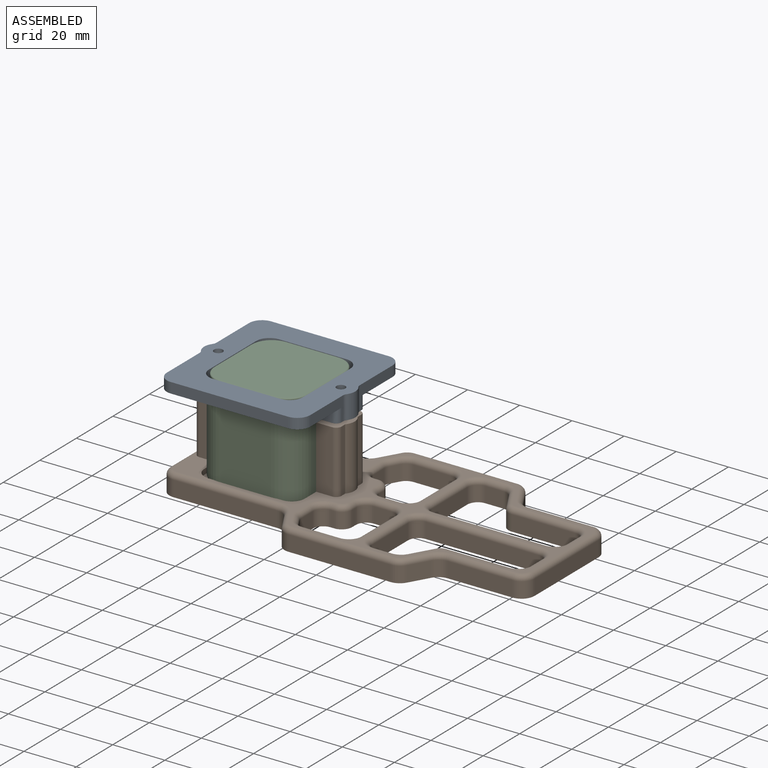
[diagram: assembled view]
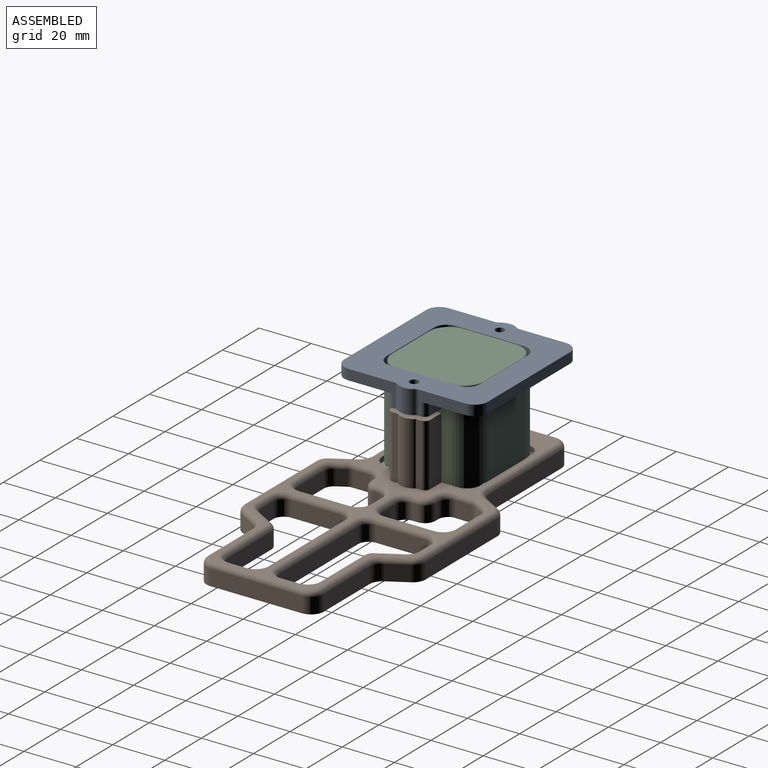
[diagram: assembled view, second angle]
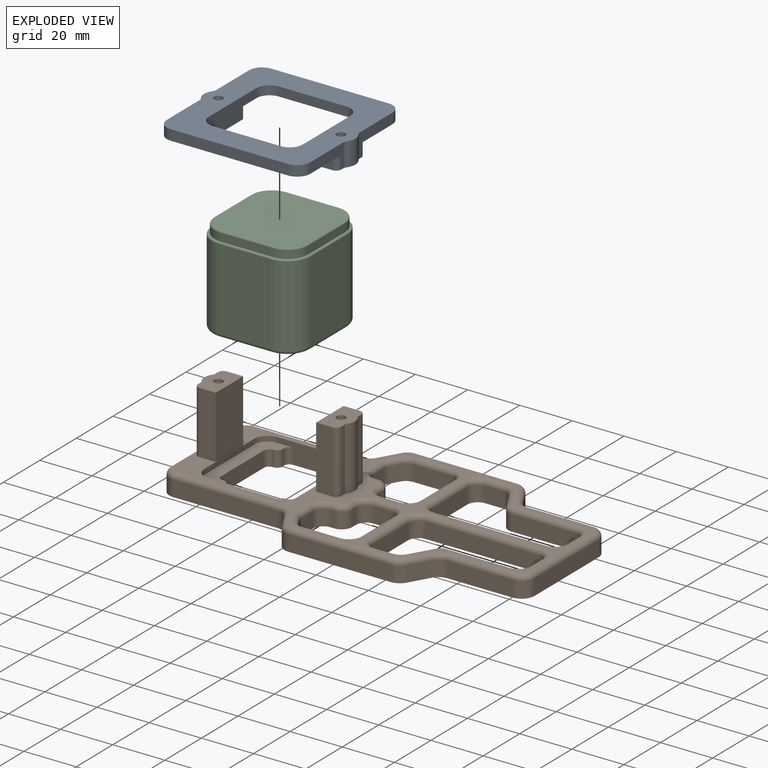
[diagram: exploded view]
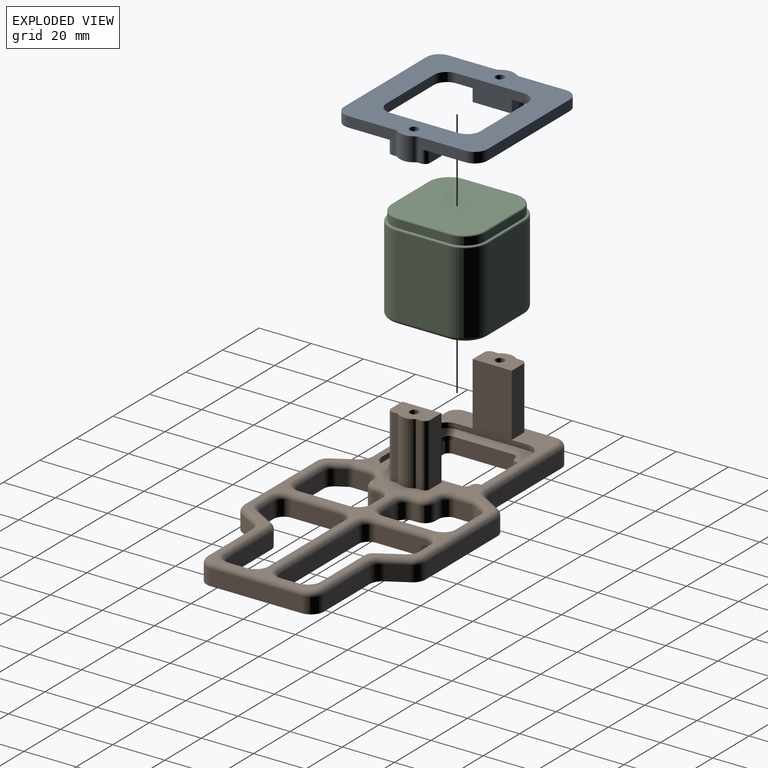
[diagram: exploded view, second angle]
ASSEMBLY  parts=3 mates=2
PART A: 44 faces, bbox 58x55x9 mm
  f0: plane 18x9mm, normal (1,0,0), area 77mm2, adj f1,f12,f19,f33,f37,f39
  f1: plane 55x22mm, normal (0,0,-1), area 638.6mm2, adj f0,f2,f5,f6,f8,f9,f19,f20
  f2: plane 18x9mm, normal (-1,0,0), area 77mm2, adj f1,f12,f20,f24,f27,f30
  f3: plane 45x4mm, normal (0,-1,0), area 180mm2, adj f11,f12,f18,f21
  f4: plane 18x9mm, normal (1,0,0), area 77mm2, adj f11,f12,f18,f33,f36,f38
  f5: plane 45x4mm, normal (0,1,0), area 180mm2, adj f1,f12,f19,f20
  f6: plane 38.5x5.5mm, normal (-1,0,0), area 94.2mm2, adj f1,f7,f9,f11,f17,f31,f32,f33
  f7: plane 38.5x0.5mm, normal (0,1,0), area 19.2mm2, adj f6,f8,f11,f17
  f8: plane 38.5x5.5mm, normal (1,0,0), area 94.2mm2, adj f1,f7,f9,f11,f17,f22,f23,f24
  f9: plane 38.5x0.5mm, normal (0,-1,0), area 19.2mm2, adj f1,f6,f8,f17
  f10: plane 18x9mm, normal (-1,0,0), area 77mm2, adj f11,f12,f21,f24,f28,f29
  f11: plane 55x22mm, normal (0,0,-1), area 638.6mm2, adj f3,f4,f6,f7,f8,f10,f18,f21
  f12: plane 58x55mm, normal (0,0,1), area 1726.6mm2, adj f0,f2,f3,f4,f5,f10,f13,f14
  f13: plane 26x3.5mm, normal (0,-1,0), area 91mm2, adj f12,f17,f40,f43
  f14: plane 26x3.5mm, normal (-1,0,0), area 91mm2, adj f12,f17,f40,f41
  f15: plane 26x3.5mm, normal (0,1,0), area 91mm2, adj f12,f17,f41,f42
  f16: plane 26x3.5mm, normal (1,0,0), area 91mm2, adj f12,f17,f42,f43
  f17: plane 38.5x38.5mm, normal (0,0,-1), area 207.7mm2, adj f6,f7,f8,f9,f13,f14,f15,f16
  f18: cylinder r=5mm len=5mm, axis (0,0,-1), area 31.4mm2, adj f3,f4,f11,f12
  f19: cylinder r=5mm len=5mm, axis (0,0,1), area 31.4mm2, adj f0,f1,f5,f12
  f20: cylinder r=5mm len=5mm, axis (0,0,-1), area 31.4mm2, adj f1,f2,f5,f12
  f21: cylinder r=5mm len=5mm, axis (0,0,1), area 31.4mm2, adj f3,f10,f11,f12
  f22: plane 6.25x5mm, normal (0,1,0), area 31.2mm2, adj f1,f8,f24,f30
  f23: plane 6.25x5mm, normal (0,-1,0), area 31.2mm2, adj f8,f11,f24,f29
  f24: plane 15x9.75mm, normal (0,0,-1), area 120.8mm2, adj f2,f8,f10,f22,f23,f25,f26,f27
  f25: cylinder r=1.7mm len=9mm, axis (0,0,-1), area 96.1mm2, adj f12,f24
  f26: cylinder r=5.5mm len=9mm, axis (0,0,-1), area 63.7mm2, adj f12,f24,f27,f28
  f27: cylinder r=2mm len=9mm, axis (0,0,-1), area 11.6mm2, adj f2,f12,f24,f26
  f28: cylinder r=2mm len=9mm, axis (0,0,-1), area 11.6mm2, adj f10,f12,f24,f26
  f29: cylinder r=2mm len=5mm, axis (0,0,1), area 15.7mm2, adj f10,f11,f23,f24
  f30: cylinder r=2mm len=5mm, axis (0,0,-1), area 15.7mm2, adj f1,f2,f22,f24
  f31: plane 6.25x5mm, normal (0,1,0), area 31.2mm2, adj f1,f6,f33,f39
  f32: plane 6.25x5mm, normal (0,-1,0), area 31.2mm2, adj f6,f11,f33,f38
  f33: plane 15x9.75mm, normal (0,0,-1), area 120.8mm2, adj f0,f4,f6,f31,f32,f34,f35,f36
  f34: cylinder r=1.7mm len=9mm, axis (0,0,-1), area 96.1mm2, adj f12,f33
  f35: cylinder r=5.5mm len=9mm, axis (0,0,-1), area 63.7mm2, adj f12,f33,f36,f37
  f36: cylinder r=2mm len=9mm, axis (0,0,-1), area 11.6mm2, adj f4,f12,f33,f35
  f37: cylinder r=2mm len=9mm, axis (0,0,-1), area 11.6mm2, adj f0,f12,f33,f35
  f38: cylinder r=2mm len=5mm, axis (0,0,1), area 15.7mm2, adj f4,f11,f32,f33
  f39: cylinder r=2mm len=5mm, axis (0,0,-1), area 15.7mm2, adj f0,f1,f31,f33
  f40: cylinder r=5mm len=5mm, axis (0,0,1), area 27.5mm2, adj f12,f13,f14,f17
  f41: cylinder r=5mm len=5mm, axis (0,0,-1), area 27.5mm2, adj f12,f14,f15,f17
  f42: cylinder r=5mm len=5mm, axis (0,0,1), area 27.5mm2, adj f12,f15,f16,f17
  f43: cylinder r=5mm len=5mm, axis (0,0,-1), area 27.5mm2, adj f12,f13,f16,f17
PART B: 214 faces, bbox 140.8x70.8x32 mm
  f0: plane 14.55x6mm, normal (0,-1,0), area 87.3mm2, adj f6,f114,f130,f166
  f1: plane 7x6mm, normal (0,1,0), area 42mm2, adj f6,f128,f134,f165
  f2: plane 14.55x6mm, normal (0,1,0), area 87.3mm2, adj f6,f107,f124,f183
  f3: plane 7x6mm, normal (0,-1,0), area 42mm2, adj f6,f126,f132,f176
  f4: plane 6x2mm, normal (1,0,0), area 12mm2, adj f6,f104,f132,f180
  f5: plane 7x6mm, normal (-1,0,0), area 42mm2, adj f6,f110,f133,f210
  f6: plane 140x70mm, normal (0,0,-1), area 3500.7mm2, adj f0,f1,f2,f3,f4,f5,f9,f10
  f7: plane 136x66mm, normal (0,0,1), area 1105.6mm2, adj f13,f16,f42,f43,f44,f45,f46,f47
  f8: plane 37.5x11.25mm, normal (0,0,1), area 221mm2, adj f9,f10,f42,f44,f45,f48,f49,f72
  f9: plane 6x0.25mm, normal (0,-1,0), area 1.5mm2, adj f6,f8,f75,f82
  f10: plane 6x0.25mm, normal (0,1,0), area 1.5mm2, adj f6,f8,f76,f84
  f11: plane 37.5x11.25mm, normal (0,0,1), area 221mm2, adj f42,f43,f44,f46,f47,f70,f71,f73
  f12: cylinder r=2.1mm len=4.46mm, axis (0,0,-1), area 58.8mm2, adj f66,f68
  f13: plane 24x2.1mm, normal (-1,0,0), area 50.4mm2, adj f7,f63,f65,f67
  f14: cylinder r=1.7mm len=3.4mm, axis (0,0,1), area 18.8mm2, adj f63,f66
  f15: cylinder r=2.1mm len=4.46mm, axis (0,0,-1), area 58.8mm2, adj f56,f58
  f16: plane 24x2.1mm, normal (1,0,0), area 50.4mm2, adj f7,f53,f55,f57
  f17: cylinder r=1.7mm len=3.4mm, axis (0,0,1), area 18.8mm2, adj f53,f56
  f18: plane 39.9x6mm, normal (0,1,0), area 239.4mm2, adj f6,f30,f41,f142
  f19: plane 35x6.15mm, normal (-1,0,0), area 210.4mm2, adj f6,f30,f31,f146,f148,f150
  f20: plane 39.9x6mm, normal (0,-1,0), area 239.4mm2, adj f6,f31,f32,f154
  f21: plane 7.5x6mm, normal (-0.87,-0.5,0), area 52mm2, adj f6,f32,f33,f158
  f22: plane 39.23x6mm, normal (0,-1,0), area 235.4mm2, adj f6,f33,f34,f161
  f23: plane 7.5x6mm, normal (0.87,-0.5,0), area 52mm2, adj f6,f34,f35,f157
  f24: plane 24.9x6mm, normal (0,-1,0), area 149.4mm2, adj f6,f35,f36,f153
  f25: plane 35x6mm, normal (1,0,0), area 210mm2, adj f6,f36,f37,f149
  f26: plane 24.9x6mm, normal (0,1,0), area 149.4mm2, adj f6,f37,f38,f145
  f27: plane 7.5x6mm, normal (0.87,0.5,0), area 52mm2, adj f6,f38,f39,f141
  f28: plane 39.23x6mm, normal (0,1,0), area 235.4mm2, adj f6,f39,f40,f137
  f29: plane 7.5x6mm, normal (-0.87,0.5,0), area 52mm2, adj f6,f40,f41,f138
  f30: cylinder r=5mm len=6mm, axis (0,0,1), area 47.1mm2, adj f6,f18,f19,f144
  f31: cylinder r=5mm len=6mm, axis (0,0,-1), area 47.1mm2, adj f6,f19,f20,f152
  f32: cylinder r=5mm len=6mm, axis (0,0,1), area 31.4mm2, adj f6,f20,f21,f156
  f33: cylinder r=5mm len=6mm, axis (0,0,1), area 31.4mm2, adj f6,f21,f22,f160
  f34: cylinder r=5mm len=6mm, axis (0,0,1), area 31.4mm2, adj f6,f22,f23,f159
  f35: cylinder r=5mm len=6mm, axis (0,0,1), area 31.4mm2, adj f6,f23,f24,f155
  f36: cylinder r=5mm len=6mm, axis (0,0,1), area 47.1mm2, adj f6,f24,f25,f151
  f37: cylinder r=5mm len=6mm, axis (0,0,-1), area 47.1mm2, adj f6,f25,f26,f147
  f38: cylinder r=5mm len=6mm, axis (0,0,1), area 31.4mm2, adj f6,f26,f27,f143
  f39: cylinder r=5mm len=6mm, axis (0,0,1), area 31.4mm2, adj f6,f27,f28,f139
  f40: cylinder r=5mm len=6mm, axis (0,0,1), area 31.4mm2, adj f6,f28,f29,f136
  f41: cylinder r=5mm len=6mm, axis (0,0,1), area 31.4mm2, adj f6,f18,f29,f140
  f42: plane 28.5x8mm, normal (0,1,0), area 153mm2, adj f6,f7,f8,f11,f46,f49,f86,f87
  f43: plane 27.5x26mm, normal (-1,0,0), area 415mm2, adj f7,f11,f46,f47,f50,f52,f53
  f44: plane 28.5x8mm, normal (0,-1,0), area 153mm2, adj f6,f7,f8,f11,f47,f48,f88,f89
  f45: plane 27.5x26mm, normal (1,0,0), area 415mm2, adj f7,f8,f48,f49,f60,f62,f63
  f46: cylinder r=5mm len=5mm, axis (0,0,1), area 15.7mm2, adj f7,f11,f42,f43
  f47: cylinder r=5mm len=5mm, axis (0,0,-1), area 15.7mm2, adj f7,f11,f43,f44
  f48: cylinder r=5mm len=5mm, axis (0,0,1), area 15.7mm2, adj f7,f8,f44,f45
  f49: cylinder r=5mm len=5mm, axis (0,0,-1), area 15.7mm2, adj f7,f8,f42,f45
  f50: plane 24x6.25mm, normal (0,-1,0), area 150mm2, adj f7,f43,f53,f54
  f51: plane 24x2.1mm, normal (1,0,0), area 50.4mm2, adj f7,f53,f54,f57
  f52: plane 24x6.25mm, normal (0,1,0), area 150mm2, adj f7,f43,f53,f55
  f53: plane 15x9.5mm, normal (0,0,1), area 118.8mm2, adj f16,f17,f43,f50,f51,f52,f54,f55
  f54: cylinder r=2mm len=24mm, axis (0,0,-1), area 75.4mm2, adj f7,f50,f51,f53
  f55: cylinder r=2mm len=24mm, axis (0,0,1), area 75.4mm2, adj f7,f16,f52,f53
  f56: cone r=0mm half-angle=59deg, axis (0,0,-1), area 5.6mm2, adj f15,f17
  f57: cylinder r=5.25mm len=24mm, axis (0,0,1), area 177.5mm2, adj f7,f16,f51,f53
  f58: cone r=0mm half-angle=59deg, axis (0,0,-1), area 16.8mm2, adj f15,f59
  f59: cylinder r=3mm len=25mm, axis (0,0,-1), area 471.2mm2, adj f6,f58
  f60: plane 24x6.25mm, normal (0,1,0), area 150mm2, adj f7,f45,f63,f65
  f61: plane 24x2.1mm, normal (-1,0,0), area 50.4mm2, adj f7,f63,f64,f67
  f62: plane 24x6.25mm, normal (0,-1,0), area 150mm2, adj f7,f45,f63,f64
  f63: plane 15x9.5mm, normal (0,0,1), area 118.8mm2, adj f13,f14,f45,f60,f61,f62,f64,f65
  f64: cylinder r=2mm len=24mm, axis (0,0,-1), area 75.4mm2, adj f7,f61,f62,f63
  f65: cylinder r=2mm len=24mm, axis (0,0,1), area 75.4mm2, adj f7,f13,f60,f63
  f66: cone r=0mm half-angle=59deg, axis (0,0,-1), area 5.6mm2, adj f12,f14
  f67: cylinder r=5.25mm len=24mm, axis (0,0,1), area 177.5mm2, adj f7,f13,f61,f63,f148
  f68: cone r=0mm half-angle=59deg, axis (0,0,-1), area 16.8mm2, adj f12,f69
  f69: cylinder r=3mm len=25mm, axis (0,0,-1), area 471.2mm2, adj f6,f68
  f70: plane 23.5x6mm, normal (-1,0,0), area 141mm2, adj f6,f11,f74,f77
  f71: plane 6x0.25mm, normal (0,-1,0), area 1.5mm2, adj f6,f11,f74,f83
  f72: plane 23.5x6mm, normal (1,0,0), area 141mm2, adj f6,f8,f75,f76
  f73: plane 6x0.25mm, normal (0,1,0), area 1.5mm2, adj f6,f11,f77,f85
  f74: cylinder r=2mm len=6mm, axis (0,0,1), area 18.8mm2, adj f6,f11,f70,f71
  f75: cylinder r=2mm len=6mm, axis (0,0,-1), area 18.8mm2, adj f6,f8,f9,f72
  f76: cylinder r=2mm len=6mm, axis (0,0,1), area 18.8mm2, adj f6,f8,f10,f72
  f77: cylinder r=2mm len=6mm, axis (0,0,-1), area 18.8mm2, adj f6,f11,f70,f73
  f78: plane 6x1mm, normal (1,0,0), area 6mm2, adj f6,f8,f84,f86
  f79: plane 6x1mm, normal (-1,0,0), area 6mm2, adj f6,f11,f85,f87
  f80: plane 6x1mm, normal (1,0,0), area 6mm2, adj f6,f8,f82,f89
  f81: plane 6x1mm, normal (-1,0,0), area 6mm2, adj f6,f11,f83,f88
  f82: cylinder r=2mm len=6mm, axis (0,0,1), area 18.8mm2, adj f6,f8,f9,f80
  f83: cylinder r=2mm len=6mm, axis (0,0,-1), area 18.8mm2, adj f6,f11,f71,f81
  f84: cylinder r=2mm len=6mm, axis (0,0,-1), area 18.8mm2, adj f6,f8,f10,f78
  f85: cylinder r=2mm len=6mm, axis (0,0,1), area 18.8mm2, adj f6,f11,f73,f79
  f86: cylinder r=2mm len=6mm, axis (0,0,-1), area 18.8mm2, adj f6,f8,f42,f78
  f87: cylinder r=2mm len=6mm, axis (0,0,1), area 18.8mm2, adj f6,f11,f42,f79
  f88: cylinder r=2mm len=6mm, axis (0,0,-1), area 18.8mm2, adj f6,f11,f44,f81
  f89: cylinder r=2mm len=6mm, axis (0,0,1), area 18.8mm2, adj f6,f8,f44,f80
  f90: plane 6x2mm, normal (1,0,0), area 12mm2, adj f6,f117,f134,f169
  f91: plane 6x1.5mm, normal (0,-1,0), area 9mm2, adj f6,f104,f105,f184
  f92: plane 6.13x6mm, normal (1,0,0), area 36.8mm2, adj f6,f105,f106,f188
  f93: plane 6x3.37mm, normal (0.87,0.5,0), area 23.4mm2, adj f6,f106,f107,f187
  f94: plane 7.05x6mm, normal (0,1,0), area 42.3mm2, adj f6,f108,f125,f205
  f95: plane 8.5x6mm, normal (-0.87,0.5,0), area 58.9mm2, adj f6,f108,f109,f209
  f96: plane 24.36x6mm, normal (0,1,0), area 146.2mm2, adj f6,f109,f110,f213
  f97: plane 7x6mm, normal (-1,0,0), area 42mm2, adj f6,f111,f135,f194
  f98: plane 24.36x6mm, normal (0,-1,0), area 146.2mm2, adj f6,f111,f112,f198
  f99: plane 8.5x6mm, normal (-0.87,-0.5,0), area 58.9mm2, adj f6,f112,f113,f201
  f100: plane 7.05x6mm, normal (0,-1,0), area 42.3mm2, adj f6,f113,f131,f197
  f101: plane 6x3.37mm, normal (0.87,-0.5,0), area 23.4mm2, adj f6,f114,f115,f170
  f102: plane 6.13x6mm, normal (1,0,0), area 36.8mm2, adj f6,f115,f116,f174
  f103: plane 6x1.5mm, normal (0,1,0), area 9mm2, adj f6,f116,f117,f173
  f104: cylinder r=4mm len=6mm, axis (0,0,-1), area 37.7mm2, adj f4,f6,f91,f182
  f105: cylinder r=4mm len=6mm, axis (0,0,-1), area 37.7mm2, adj f6,f91,f92,f186
  f106: cylinder r=4mm len=6mm, axis (0,0,-1), area 12.6mm2, adj f6,f92,f93,f189
  f107: cylinder r=4mm len=6mm, axis (0,0,-1), area 25.1mm2, adj f2,f6,f93,f185
  f108: cylinder r=4mm len=6mm, axis (0,0,-1), area 25.1mm2, adj f6,f94,f95,f207
  f109: cylinder r=4mm len=6mm, axis (0,0,1), area 25.1mm2, adj f6,f95,f96,f211
  f110: cylinder r=4mm len=6mm, axis (0,0,-1), area 37.7mm2, adj f5,f6,f96,f212
  f111: cylinder r=4mm len=6mm, axis (0,0,1), area 37.7mm2, adj f6,f97,f98,f196
  f112: cylinder r=4mm len=6mm, axis (0,0,1), area 25.1mm2, adj f6,f98,f99,f200
  f113: cylinder r=4mm len=6mm, axis (0,0,-1), area 25.1mm2, adj f6,f99,f100,f199
  f114: cylinder r=4mm len=6mm, axis (0,0,-1), area 25.1mm2, adj f0,f6,f101,f168
  f115: cylinder r=4mm len=6mm, axis (0,0,-1), area 12.6mm2, adj f6,f101,f102,f172
  f116: cylinder r=4mm len=6mm, axis (0,0,-1), area 37.7mm2, adj f6,f102,f103,f175
  f117: cylinder r=4mm len=6mm, axis (0,0,1), area 37.7mm2, adj f6,f90,f103,f171
  f118: plane 43.25x6mm, normal (0,-1,0), area 259.5mm2, adj f6,f127,f133,f206
  f119: plane 43.25x6mm, normal (0,1,0), area 259.5mm2, adj f6,f129,f135,f190
  f120: plane 19.5x6mm, normal (-1,0,0), area 117mm2, adj f6,f124,f126,f179
  f121: plane 19.5x6mm, normal (1,0,0), area 117mm2, adj f6,f125,f127,f202
  f122: plane 19.5x6mm, normal (-1,0,0), area 117mm2, adj f6,f128,f130,f162
  f123: plane 19.5x6mm, normal (1,0,0), area 117mm2, adj f6,f129,f131,f193
  f124: cylinder r=4mm len=6mm, axis (0,0,-1), area 37.7mm2, adj f2,f6,f120,f181
  f125: cylinder r=4mm len=6mm, axis (0,0,1), area 37.7mm2, adj f6,f94,f121,f203
  f126: cylinder r=4mm len=6mm, axis (0,0,1), area 37.7mm2, adj f3,f6,f120,f177
  f127: cylinder r=4mm len=6mm, axis (0,0,-1), area 37.7mm2, adj f6,f118,f121,f204
  f128: cylinder r=4mm len=6mm, axis (0,0,-1), area 37.7mm2, adj f1,f6,f122,f163
  f129: cylinder r=4mm len=6mm, axis (0,0,1), area 37.7mm2, adj f6,f119,f123,f191
  f130: cylinder r=4mm len=6mm, axis (0,0,1), area 37.7mm2, adj f0,f6,f122,f164
  f131: cylinder r=4mm len=6mm, axis (0,0,-1), area 37.7mm2, adj f6,f100,f123,f195
  f132: cylinder r=4mm len=6mm, axis (0,0,-1), area 37.7mm2, adj f3,f4,f6,f178
  f133: cylinder r=4mm len=6mm, axis (0,0,1), area 37.7mm2, adj f5,f6,f118,f208
  f134: cylinder r=4mm len=6mm, axis (0,0,1), area 37.7mm2, adj f1,f6,f90,f167
  f135: cylinder r=4mm len=6mm, axis (0,0,-1), area 37.7mm2, adj f6,f97,f119,f192
  f136: torus R=3mm, axis (0,0,1), area 14.1mm2, adj f7,f40,f137,f138
  f137: cylinder r=2mm len=39.23mm, axis (1,0,0), area 123.2mm2, adj f7,f28,f136,f139
  f138: cylinder r=2mm len=8.5mm, axis (0.5,0.87,0), area 27.2mm2, adj f7,f29,f136,f140
  f139: torus R=3mm, axis (0,0,1), area 14.1mm2, adj f7,f39,f137,f141
  f140: torus R=7mm, axis (0,0,1), area 18.8mm2, adj f7,f41,f138,f142
  f141: cylinder r=2mm len=8.5mm, axis (0.5,-0.87,0), area 27.2mm2, adj f7,f27,f139,f143
  f142: cylinder r=2mm len=39.9mm, axis (1,0,0), area 125.3mm2, adj f7,f18,f140,f144
  f143: torus R=7mm, axis (0,0,1), area 18.8mm2, adj f7,f38,f141,f145
  f144: torus R=3mm, axis (0,0,1), area 21.1mm2, adj f7,f30,f142,f146
  f145: cylinder r=2mm len=24.9mm, axis (1,0,0), area 78.2mm2, adj f7,f26,f143,f147
  f146: cylinder r=2mm len=14.8mm, axis (0,1,0), area 46.5mm2, adj f7,f19,f144,f148
  f147: torus R=3mm, axis (0,0,1), area 21.1mm2, adj f7,f37,f145,f149
  f148: bspline ~5.41x2mm, area 14.2mm2, adj f19,f67,f146,f150
  f149: cylinder r=2mm len=35mm, axis (0,-1,0), area 110mm2, adj f7,f25,f147,f151
  f150: cylinder r=2mm len=14.8mm, axis (0,1,0), area 46.5mm2, adj f7,f19,f148,f152
  f151: torus R=3mm, axis (0,0,1), area 21.1mm2, adj f7,f36,f149,f153
  f152: torus R=3mm, axis (0,0,1), area 21.1mm2, adj f7,f31,f150,f154
  f153: cylinder r=2mm len=24.9mm, axis (-1,0,0), area 78.2mm2, adj f7,f24,f151,f155
  f154: cylinder r=2mm len=39.9mm, axis (-1,0,0), area 125.3mm2, adj f7,f20,f152,f156
  f155: torus R=7mm, axis (0,0,1), area 18.8mm2, adj f7,f35,f153,f157
  f156: torus R=7mm, axis (0,0,1), area 18.8mm2, adj f7,f32,f154,f158
  f157: cylinder r=2mm len=8.5mm, axis (-0.5,-0.87,0), area 27.2mm2, adj f7,f23,f155,f159
  f158: cylinder r=2mm len=8.5mm, axis (-0.5,0.87,0), area 27.2mm2, adj f7,f21,f156,f160
  f159: torus R=3mm, axis (0,0,1), area 14.1mm2, adj f7,f34,f157,f161
  f160: torus R=3mm, axis (0,0,1), area 14.1mm2, adj f7,f33,f158,f161
  f161: cylinder r=2mm len=39.23mm, axis (-1,0,0), area 123.2mm2, adj f7,f22,f159,f160
  f162: cylinder r=2mm len=19.5mm, axis (0,-1,0), area 61.3mm2, adj f7,f122,f163,f164
  f163: torus R=6mm, axis (0,0,1), area 23.3mm2, adj f7,f128,f162,f165
  f164: torus R=6mm, axis (0,0,1), area 23.3mm2, adj f7,f130,f162,f166
  f165: cylinder r=2mm len=7mm, axis (-1,0,0), area 22mm2, adj f1,f7,f163,f167
  f166: cylinder r=2mm len=14.55mm, axis (1,0,0), area 45.7mm2, adj f0,f7,f164,f168
  f167: torus R=6mm, axis (0,0,1), area 23.3mm2, adj f7,f134,f165,f169
  f168: torus R=6mm, axis (0,0,1), area 15.6mm2, adj f7,f114,f166,f170
  f169: cylinder r=2mm len=2mm, axis (0,1,0), area 6.3mm2, adj f7,f90,f167,f171
  f170: cylinder r=2mm len=4.37mm, axis (0.5,0.87,0), area 12.2mm2, adj f7,f101,f168,f172
  f171: torus R=2mm, axis (0,0,1), area 16.2mm2, adj f7,f117,f169,f173
  f172: torus R=6mm, axis (0,0,1), area 7.8mm2, adj f7,f115,f170,f174
  f173: cylinder r=2mm len=2mm, axis (-1,0,0), area 4.7mm2, adj f7,f103,f171,f175
  f174: cylinder r=2mm len=6.13mm, axis (0,1,0), area 19.3mm2, adj f7,f102,f172,f175
  f175: torus R=6mm, axis (0,0,1), area 23.3mm2, adj f7,f116,f173,f174
  f176: cylinder r=2mm len=7mm, axis (1,0,0), area 22mm2, adj f3,f7,f177,f178
  f177: torus R=6mm, axis (0,0,1), area 23.3mm2, adj f7,f126,f176,f179
  f178: torus R=6mm, axis (0,0,1), area 23.3mm2, adj f7,f132,f176,f180
  f179: cylinder r=2mm len=19.5mm, axis (0,-1,0), area 61.3mm2, adj f7,f120,f177,f181
  f180: cylinder r=2mm len=2mm, axis (0,1,0), area 6.3mm2, adj f4,f7,f178,f182
  f181: torus R=6mm, axis (0,0,1), area 23.3mm2, adj f7,f124,f179,f183
  f182: torus R=2mm, axis (0,0,1), area 16.2mm2, adj f7,f104,f180,f184
  f183: cylinder r=2mm len=14.55mm, axis (-1,0,0), area 45.7mm2, adj f2,f7,f181,f185
  f184: cylinder r=2mm len=2mm, axis (1,0,0), area 4.7mm2, adj f7,f91,f182,f186
  f185: torus R=6mm, axis (0,0,1), area 15.6mm2, adj f7,f107,f183,f187
  f186: torus R=6mm, axis (0,0,1), area 23.3mm2, adj f7,f105,f184,f188
  f187: cylinder r=2mm len=4.37mm, axis (-0.5,0.87,0), area 12.2mm2, adj f7,f93,f185,f189
  f188: cylinder r=2mm len=6.13mm, axis (0,1,0), area 19.3mm2, adj f7,f92,f186,f189
  f189: torus R=6mm, axis (0,0,1), area 7.8mm2, adj f7,f106,f187,f188
  f190: cylinder r=2mm len=43.25mm, axis (-1,0,0), area 135.9mm2, adj f7,f119,f191,f192
  f191: torus R=6mm, axis (0,0,1), area 23.3mm2, adj f7,f129,f190,f193
  f192: torus R=6mm, axis (0,0,1), area 23.3mm2, adj f7,f135,f190,f194
  f193: cylinder r=2mm len=19.5mm, axis (0,1,0), area 61.3mm2, adj f7,f123,f191,f195
  f194: cylinder r=2mm len=7mm, axis (0,-1,0), area 22mm2, adj f7,f97,f192,f196
  f195: torus R=6mm, axis (0,0,1), area 23.3mm2, adj f7,f131,f193,f197
  f196: torus R=6mm, axis (0,0,1), area 23.3mm2, adj f7,f111,f194,f198
  f197: cylinder r=2mm len=7.05mm, axis (1,0,0), area 22.2mm2, adj f7,f100,f195,f199
  f198: cylinder r=2mm len=24.36mm, axis (1,0,0), area 76.5mm2, adj f7,f98,f196,f200
  f199: torus R=6mm, axis (0,0,1), area 15.6mm2, adj f7,f113,f197,f201
  f200: torus R=2mm, axis (0,0,1), area 10.8mm2, adj f7,f112,f198,f201
  f201: cylinder r=2mm len=9.5mm, axis (0.5,-0.87,0), area 30.8mm2, adj f7,f99,f199,f200
  f202: cylinder r=2mm len=19.5mm, axis (0,1,0), area 61.3mm2, adj f7,f121,f203,f204
  f203: torus R=6mm, axis (0,0,1), area 23.3mm2, adj f7,f125,f202,f205
  f204: torus R=6mm, axis (0,0,1), area 23.3mm2, adj f7,f127,f202,f206
  f205: cylinder r=2mm len=7.05mm, axis (-1,0,0), area 22.2mm2, adj f7,f94,f203,f207
  f206: cylinder r=2mm len=43.25mm, axis (1,0,0), area 135.9mm2, adj f7,f118,f204,f208
  f207: torus R=6mm, axis (0,0,1), area 15.6mm2, adj f7,f108,f205,f209
  f208: torus R=6mm, axis (0,0,1), area 23.3mm2, adj f7,f133,f206,f210
  f209: cylinder r=2mm len=9.5mm, axis (-0.5,-0.87,0), area 30.8mm2, adj f7,f95,f207,f211
  f210: cylinder r=2mm len=7mm, axis (0,-1,0), area 22mm2, adj f5,f7,f208,f212
  f211: torus R=2mm, axis (0,0,1), area 10.8mm2, adj f7,f109,f209,f213
  f212: torus R=6mm, axis (0,0,1), area 23.3mm2, adj f7,f110,f210,f213
  f213: cylinder r=2mm len=24.36mm, axis (-1,0,0), area 76.5mm2, adj f7,f96,f211,f212
PART C: 43 faces, bbox 39.5x39.5x36.5 mm
  f0: plane 31x20mm, normal (0,-1,0), area 620mm2, adj f15,f18,f22,f30
  f1: plane 31x20mm, normal (1,0,0), area 620mm2, adj f15,f16,f19,f27
  f2: plane 31x20mm, normal (0,1,0), area 620mm2, adj f16,f17,f23,f31
  f3: plane 31x20mm, normal (-1,0,0), area 620mm2, adj f17,f18,f26,f34
  f4: plane 37x37mm, normal (0,0,1), area 65.9mm2, adj f6,f7,f8,f9,f11,f12,f13,f14
  f5: plane 35x35mm, normal (0,0,-1), area 1176.7mm2, adj f19,f20,f21,f22,f23,f24,f25,f26
  f6: plane 20x3mm, normal (0,-1,0), area 60mm2, adj f4,f11,f14,f38
  f7: plane 20x3mm, normal (1,0,0), area 60mm2, adj f4,f11,f12,f35
  f8: plane 20x3mm, normal (0,1,0), area 60mm2, adj f4,f12,f13,f39
  f9: plane 20x3mm, normal (-1,0,0), area 60mm2, adj f4,f13,f14,f42
  f10: plane 35x35mm, normal (0,0,1), area 1176.7mm2, adj f35,f36,f37,f38,f39,f40,f41,f42
  f11: cylinder r=8mm len=8mm, axis (0,0,1), area 37.7mm2, adj f4,f6,f7,f36
  f12: cylinder r=8mm len=8mm, axis (0,0,-1), area 37.7mm2, adj f4,f7,f8,f37
  f13: cylinder r=8mm len=8mm, axis (0,0,1), area 37.7mm2, adj f4,f8,f9,f41
  f14: cylinder r=8mm len=8mm, axis (0,0,-1), area 37.7mm2, adj f4,f6,f9,f40
  f15: cylinder r=9mm len=31mm, axis (0,0,1), area 438.3mm2, adj f0,f1,f20,f28
  f16: cylinder r=9mm len=31mm, axis (0,0,-1), area 438.3mm2, adj f1,f2,f21,f29
  f17: cylinder r=9mm len=31mm, axis (0,0,1), area 438.3mm2, adj f2,f3,f25,f33
  f18: cylinder r=9mm len=31mm, axis (0,0,-1), area 438.3mm2, adj f0,f3,f24,f32
  f19: cylinder r=1.5mm len=20mm, axis (0,1,0), area 47.1mm2, adj f1,f5,f20,f21
  f20: torus R=7.5mm, axis (0,0,1), area 31.3mm2, adj f5,f15,f19,f22
  f21: torus R=7.5mm, axis (0,0,1), area 31.3mm2, adj f5,f16,f19,f23
  f22: cylinder r=1.5mm len=20mm, axis (1,0,0), area 47.1mm2, adj f0,f5,f20,f24
  f23: cylinder r=1.5mm len=20mm, axis (-1,0,0), area 47.1mm2, adj f2,f5,f21,f25
  f24: torus R=7.5mm, axis (0,0,1), area 31.3mm2, adj f5,f18,f22,f26
  f25: torus R=7.5mm, axis (0,0,1), area 31.3mm2, adj f5,f17,f23,f26
  f26: cylinder r=1.5mm len=20mm, axis (0,-1,0), area 47.1mm2, adj f3,f5,f24,f25
  f27: cylinder r=0.5mm len=20mm, axis (0,-1,0), area 15.7mm2, adj f1,f4,f28,f29
  f28: torus R=8.5mm, axis (0,0,1), area 10.9mm2, adj f4,f15,f27,f30
  f29: torus R=8.5mm, axis (0,0,1), area 10.9mm2, adj f4,f16,f27,f31
  f30: cylinder r=0.5mm len=20mm, axis (-1,0,0), area 15.7mm2, adj f0,f4,f28,f32
  f31: cylinder r=0.5mm len=20mm, axis (1,0,0), area 15.7mm2, adj f2,f4,f29,f33
  f32: torus R=8.5mm, axis (0,0,1), area 10.9mm2, adj f4,f18,f30,f34
  f33: torus R=8.5mm, axis (0,0,1), area 10.9mm2, adj f4,f17,f31,f34
  f34: cylinder r=0.5mm len=20mm, axis (0,1,0), area 15.7mm2, adj f3,f4,f32,f33
  f35: cylinder r=0.5mm len=20mm, axis (0,-1,0), area 15.7mm2, adj f7,f10,f36,f37
  f36: torus R=7.5mm, axis (0,0,1), area 9.6mm2, adj f10,f11,f35,f38
  f37: torus R=7.5mm, axis (0,0,1), area 9.6mm2, adj f10,f12,f35,f39
  f38: cylinder r=0.5mm len=20mm, axis (-1,0,0), area 15.7mm2, adj f6,f10,f36,f40
  f39: cylinder r=0.5mm len=20mm, axis (1,0,0), area 15.7mm2, adj f8,f10,f37,f41
  f40: torus R=7.5mm, axis (0,0,1), area 9.6mm2, adj f10,f14,f38,f42
  f41: torus R=7.5mm, axis (0,0,1), area 9.6mm2, adj f10,f13,f39,f42
  f42: cylinder r=0.5mm len=20mm, axis (0,1,0), area 15.7mm2, adj f9,f10,f40,f41
PLACE A t=(0,0,42.5)mm
PLACE B at identity fixed
PLACE C t=(0,0,6)mm
MATE planar A.f12 <-> C.f10  axis (0,0,1) through (0,0,42.5)mm
MATE planar C.f5 <-> B.f11  axis (0,0,-1) through (0,0,6)mm
